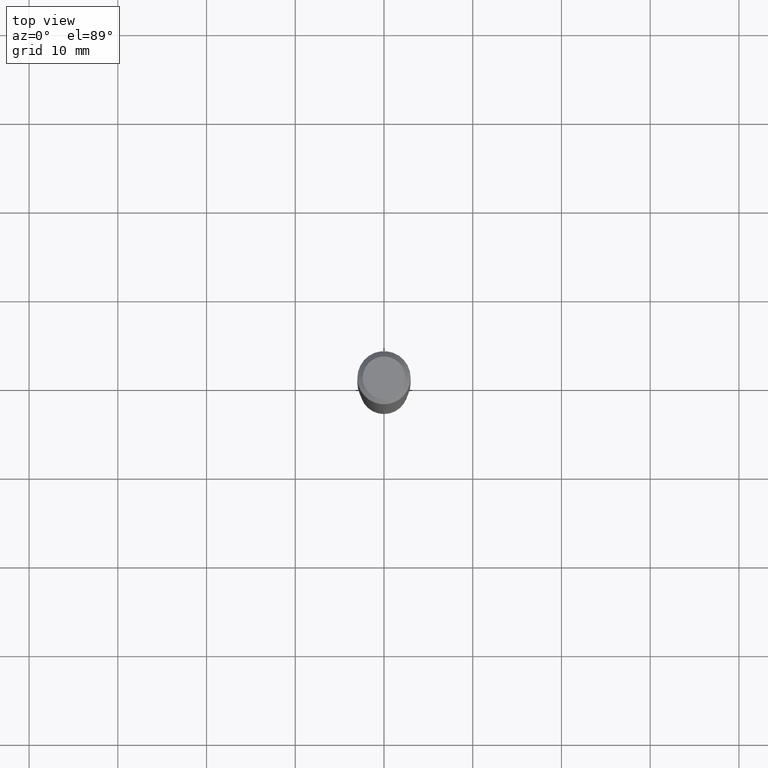
[diagram: clean part render]
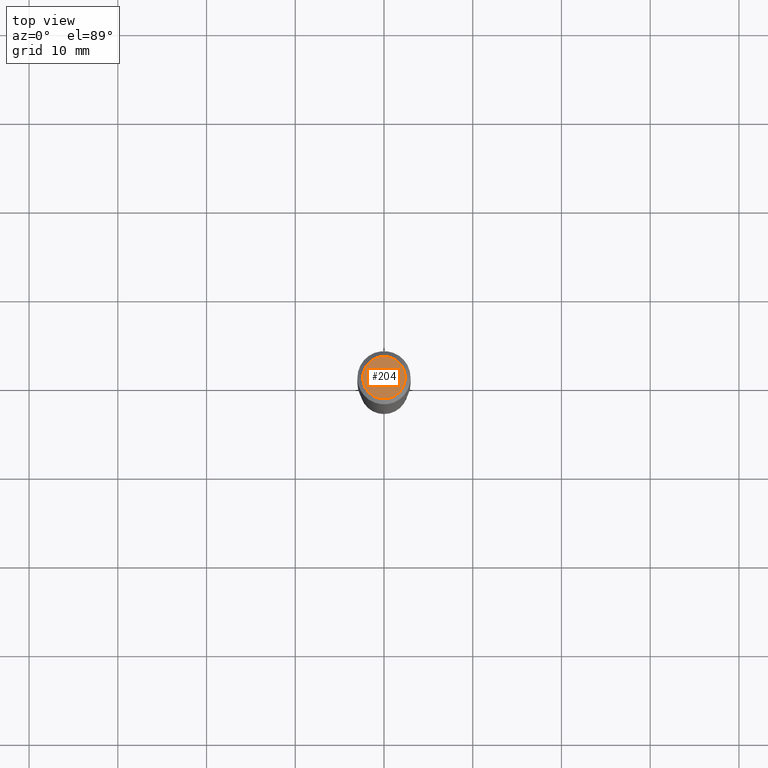
[diagram: same view with one face highlighted and labeled with its STEP entity id]
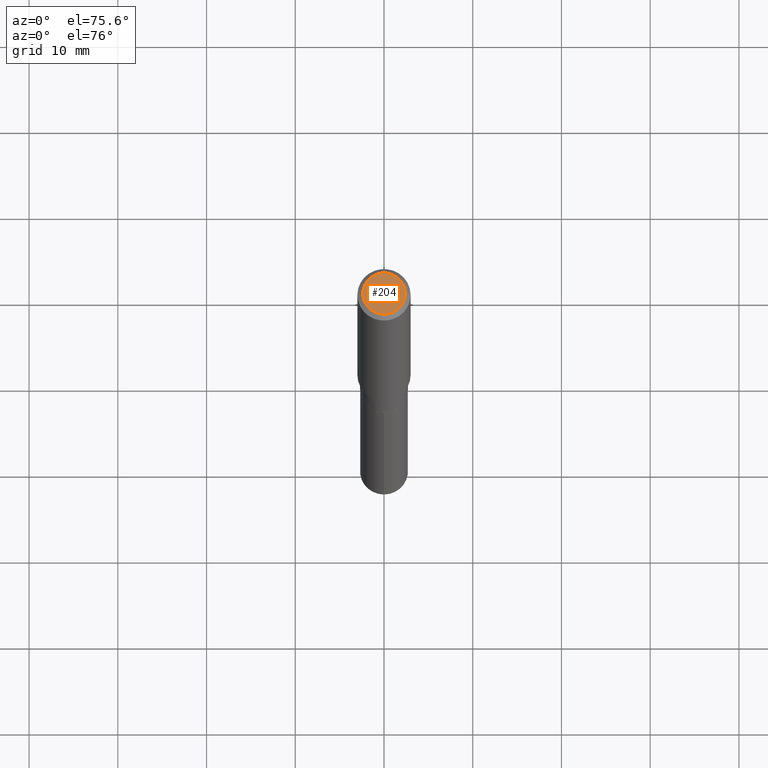
[diagram: same view with one face highlighted and labeled with its STEP entity id]
A machine part, top view. The second image highlights one B-rep face of the part: STEP entity #204.
A second angle (auxiliary view) of the same face is appended — the face is thin or edge-on in the first view.
In plain terms, the highlighted planar face has unit normal (0, -0, -1).
Its self-contained STEP definition (entity closure, byte-faithful):
#17 = CARTESIAN_POINT ( 'NONE',  ( 4.716267017698007905E-46, -6.733579360998555036E-32, -1.928573779297252010E-17 ) ) ;
#33 = EDGE_CURVE ( 'NONE', #210, #95, #144, .T. ) ;
#65 = DIRECTION ( 'NONE',  ( -1.000000000000000000, 6.982962677686265922E-15, -4.876176775795935793E-29 ) ) ;
#67 = CARTESIAN_POINT ( 'NONE',  ( 0.09447999999999998066, -7.704367267948738690E-16, -1.928573779296752193E-17 ) ) ;
#95 = VERTEX_POINT ( 'NONE', #407 ) ;
#99 = EDGE_LOOP ( 'NONE', ( #206, #360 ) ) ;
#123 = DIRECTION ( 'NONE',  ( -2.445468806185136597E-29, 3.491481338843145583E-15, 1.000000000000000000 ) ) ;
#144 = CIRCLE ( 'NONE', #401, 0.09447999999999998066 ) ;
#180 = DIRECTION ( 'NONE',  ( 1.000000000000000000, -6.982962677686267499E-15, 4.875432709231658792E-29 ) ) ;
#204 = ADVANCED_FACE ( 'NONE', ( #372 ), #300, .F. ) ;
#206 = ORIENTED_EDGE ( 'NONE', *, *, #402, .T. ) ;
#210 = VERTEX_POINT ( 'NONE', #67 ) ;
#235 = AXIS2_PLACEMENT_3D ( 'NONE', #330, #451, #65 ) ;
#252 = DIRECTION ( 'NONE',  ( 1.000000000000000000, -6.982962677686267499E-15, 4.875432709231658792E-29 ) ) ;
#300 = PLANE ( 'NONE',  #235 ) ;
#330 = CARTESIAN_POINT ( 'NONE',  ( 2.358133508849003952E-46, -3.366789680499277518E-32, -9.642868896486260050E-18 ) ) ;
#360 = ORIENTED_EDGE ( 'NONE', *, *, #33, .T. ) ;
#372 = FACE_OUTER_BOUND ( 'NONE', #99, .T. ) ;
#392 = AXIS2_PLACEMENT_3D ( 'NONE', #406, #123, #252 ) ;
#401 = AXIS2_PLACEMENT_3D ( 'NONE', #17, #472, #180 ) ;
#402 = EDGE_CURVE ( 'NONE', #95, #210, #468, .T. ) ;
#406 = CARTESIAN_POINT ( 'NONE',  ( 4.716267017698007905E-46, -6.733579360998555036E-32, -1.928573779297252010E-17 ) ) ;
#407 = CARTESIAN_POINT ( 'NONE',  ( -0.09447999999999998066, 7.009847083995354710E-16, -1.928573779297727792E-17 ) ) ;
#451 = DIRECTION ( 'NONE',  ( 2.438088387897960049E-29, -3.491481338843145188E-15, -1.000000000000000000 ) ) ;
#468 = CIRCLE ( 'NONE', #392, 0.09447999999999998066 ) ;
#472 = DIRECTION ( 'NONE',  ( -2.445468806185136597E-29, 3.491481338843145583E-15, 1.000000000000000000 ) ) ;